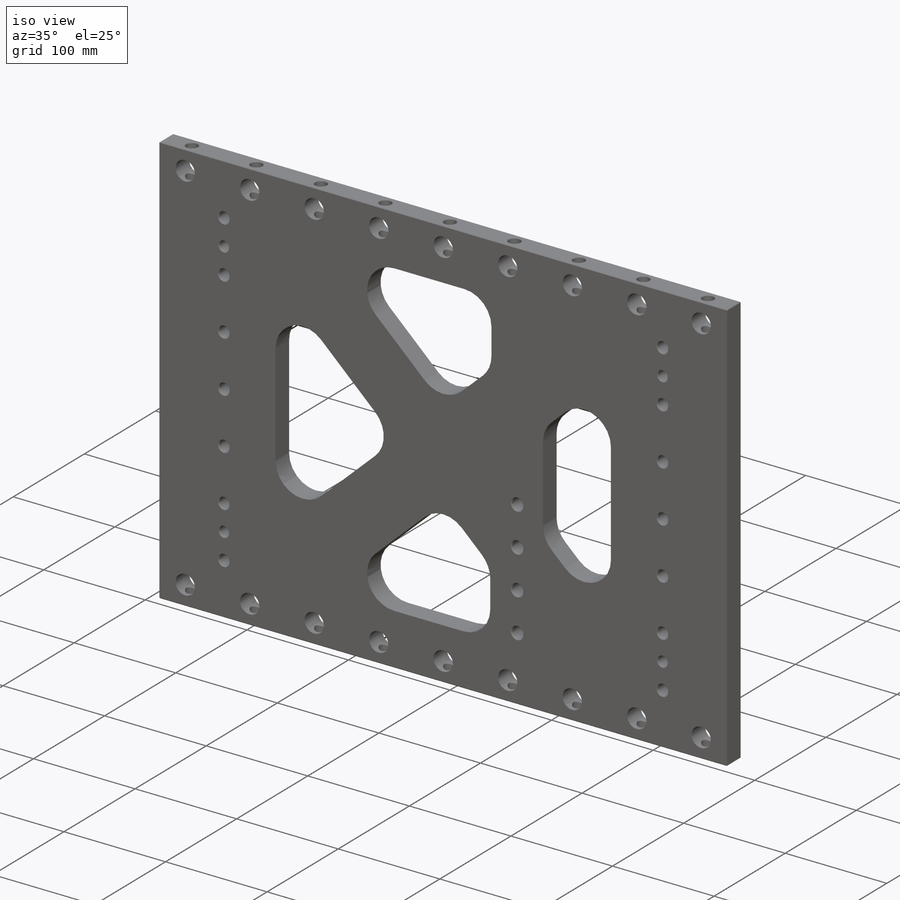
[diagram: iso view]
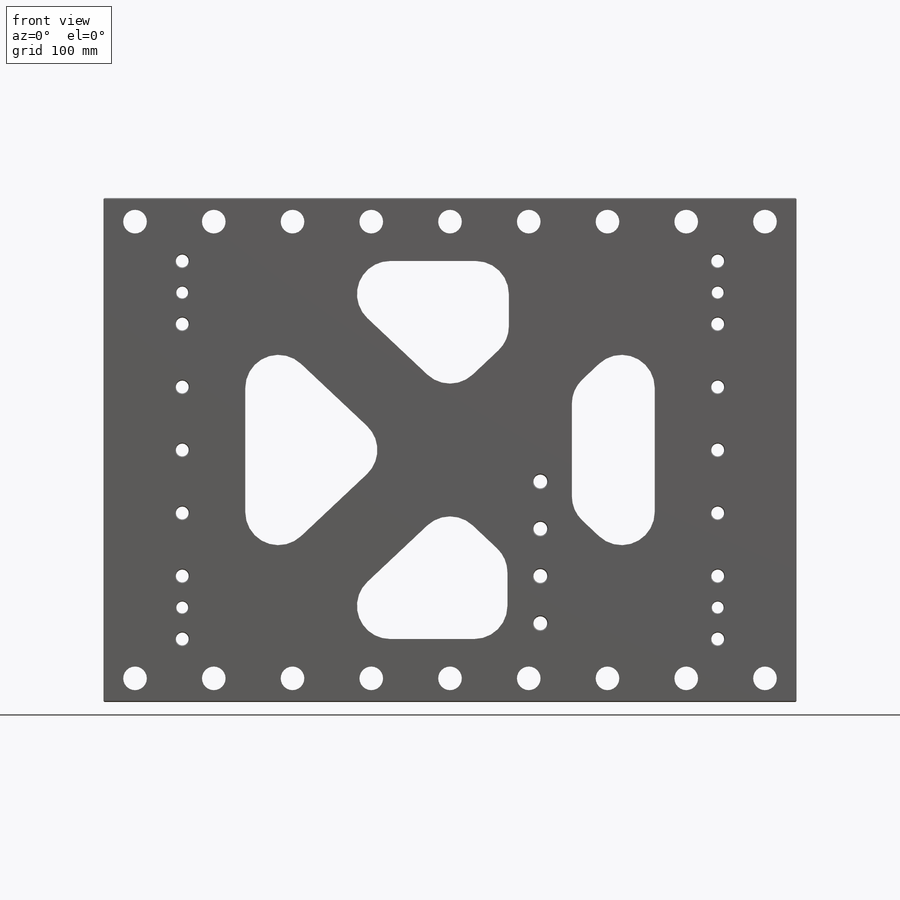
[diagram: front view]
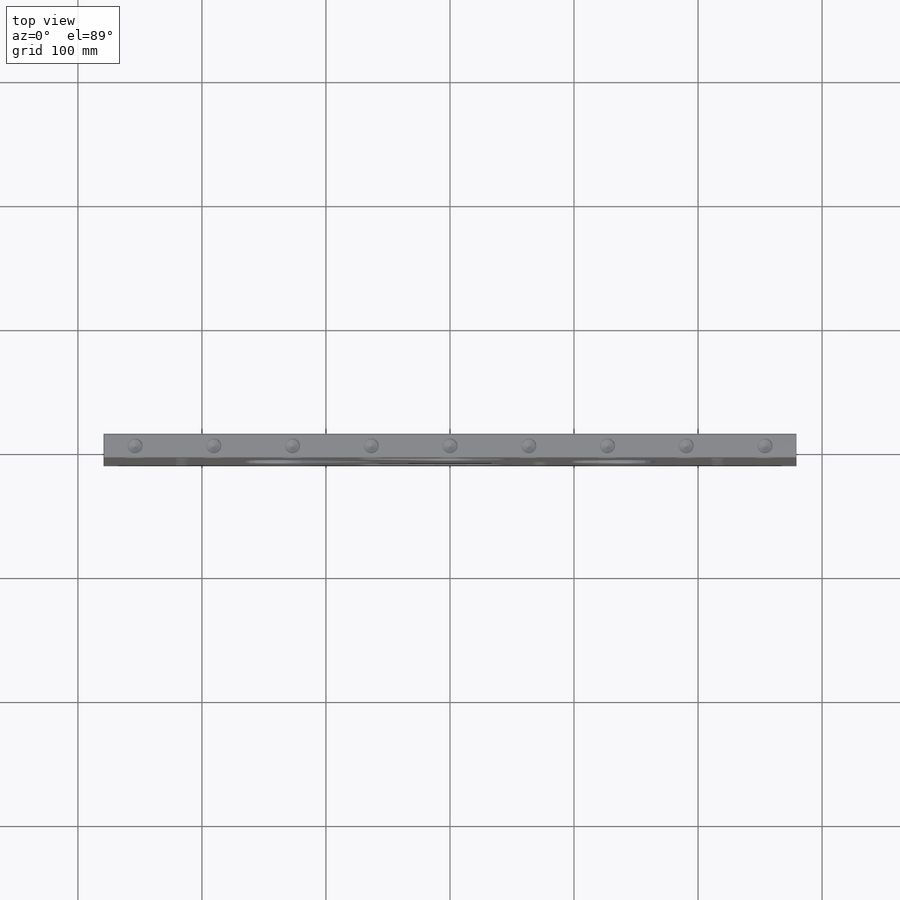
[diagram: top view]
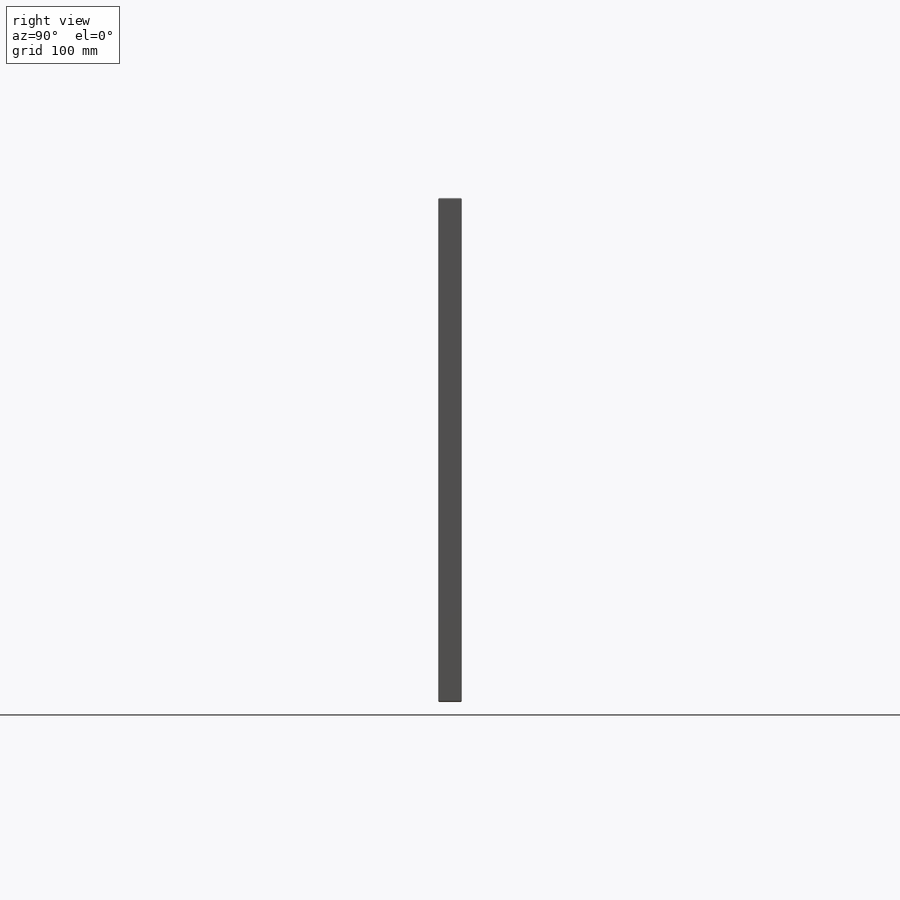
[diagram: right view]
SOLIDWORKS PART (.sldprt)
format: sldprt  version: not decoded by parser v0  size: 786,944 bytes
history: native  units: mm
features: sketch x12, hole x5, pattern_linear x3, mirror x2, material x1, extrude x1, cut_extrude x1, fillet x1, chamfer x1 (+14 scaffold rows collapsed)
feature tree (41):
  scaffold x14  (default folders/planes/origin — collapsed)
  material  "6061-T6 Al"
  sketch  "Sketch2"  dims[D1=558.8mm D2=406.4mm]
  extrude  "Extrude1"  Depth=19.05mm
  sketch  "Sketch8"  dims[c1.D1=50.8mm c1.D2=76.2mm c1.D3=50.8mm c2.D1=431.8mm c2.D2=63.5mm c2.D3=50.8mm c2.D4=50.8mm c3.D1=330.2mm c3.D4=431.8mm c4.D1=215.9mm c4.D4=50.8mm c4.D5=82.55mm c4.D6=50.8mm c4.D7=~46.325701mm c5.D6=50.8mm c5.D5=~206.533496mm]
  cut_extrude  "Triangles -- Cut-Extrude2"  [1 undecoded]
  fillet  "Triangles -- Fillet1"  Radius=26.67mm
  hole  "CBORE for 3/8 Socket Head Cap Screw2"  Diameter=10.31748mm Depth=19.05mm
  sketch  "Sketch4"  dims[D1=431.8mm]
  sketch  "Sketch3"  dims[hole-wizard template sketch: 42 standard entries collapsed; hole parameters kept: c12.Thru Hole Depth=19.05mm c12.C'Bore Dia.=17.4625mm c12.C'Bore Depth=4.318mm c12.Far C'Sink Dia.=11.684mm c12.D6=~2.963249mm c12.Far C'Sink Angle=82.0deg]
  pattern_linear  "LPattern3"  Count1=4 Count2=4 Spacing1=50.8mm Spacing2=50.8mm
  mirror  "Mirror1"
  hole  "3/4 (0.75) Diameter Hole1"  Diameter=19.05mm Depth=19.05mm
  sketch  "Sketch11"  dims[D1=19.05mm]
  sketch  "Sketch10"  dims[hole-wizard template sketch: 60 standard entries collapsed; hole parameters kept: c18.Thru Hole Depth=19.05mm]
  hole  "7/16 (0.4375) Diameter Hole1"  Diameter=11.1125mm Depth=34.925mm
  sketch  "Sketch13"
  sketch  "Sketch12"  dims[hole-wizard template sketch: 46 standard entries collapsed; hole parameters above]
  pattern_linear  "LPattern4"  Count1=5 Count2=5 Spacing1=63.5mm Spacing2=63.5mm
  mirror  "Mirror2"
  hole  "CBORE for 3/8 Socket Head Cap Screw1"  Diameter=11.1125mm Depth=19.05mm
  sketch  "Sketch19"  dims[D1=38.1mm D2=63.5mm]
  sketch  "Sketch18"  dims[hole-wizard template sketch: 41 standard entries collapsed; hole parameters kept: c12.Thru Hole Dia.=11.1125mm c12.Thru Hole Depth=19.05mm c12.C'Bore Dia.=~18.25625mm c12.C'Bore Depth=4.318mm c12.Far C'Sink Dia.=12.7mm c12.D6=~2.963249mm c12.Far C'Sink Angle=82.0deg]
  pattern_linear  "LPattern5"  Count1=4 Count2=1 Spacing1=38.1mm Spacing2=76.2mm
  hole  "3/8 (0.375) Pin + Lead-In Hole1"  Diameter=9.525mm Depth=19.05mm
  sketch  "Sketch22"  dims[D1=76.2mm]
  sketch  "Sketch21"  dims[hole-wizard template sketch: 42 standard entries collapsed; hole parameters kept: c12.Thru Hole Depth=19.05mm c12.C'Bore Dia.=9.5758mm c12.C'Bore Depth=3.175mm c12.Near C'Sink Dia.=10.668mm c12.D6=~4.399409mm c12.Near C'Sink Angle=82.0deg]
  chamfer  "Chamfer1"  Distance=0.762mm Angle=45deg
decode coverage: 22 of 26 modeling features carry decoded parameters
note: ~ marks probable driven/reference dimensions
note: 1 parameter value undecoded
summary: Diameter pulled from absorbed wizard sketch
note: suppression state not decoded; provenance and decode notes live in map.json
